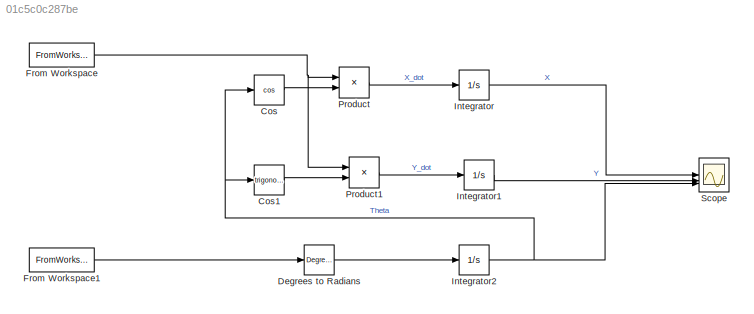
MODEL slx_01c5c0c287be
KIND model
CONFIG AbsTol = auto
CONFIG EnableMultiTasking = off
CONFIG FixedStep = auto
CONFIG MaxStep = auto
CONFIG MinStep = auto
CONFIG RelTol = 1e-3
CONFIG SampleTimeConstraint = Unconstrained
CONFIG SolverName = VariableStepAuto
CONFIG StartTime = 0.0
CONFIG StopTime = 10.0
BLOCK [Trigonometry] Cos
  Operator = cos
BLOCK [Trigonometry] Cos1
BLOCK [Reference] Degrees to Radians  REF=simulink_extras/Transformations/Degrees to
Radians
  SourceBlock = simulink_extras/Transformations/Degrees to\nRadians
  SourceType = DegreesToRadians
BLOCK [FromWorkspace] From Workspace
  VariableName = V
BLOCK [FromWorkspace] From Workspace1
  VariableName = Omega
BLOCK [Integrator] Integrator
BLOCK [Integrator] Integrator1
BLOCK [Integrator] Integrator2
BLOCK [Product] Product
BLOCK [Product] Product1
BLOCK [Scope] Scope
  Floating = off
  NumInputPorts = 3
  ScopeSpecificationString = Simulink.scopes.TimeScopeBlockCfg('CurrentConfiguration', extmgr.ConfigurationSet(extmgr.Configuration('Core','General UI',true),extmgr.Configuration('Core','Source UI',true),extmgr.Configuration('Sources','WiredSimulink',true),extmgr.Configuration('Visuals','Time Domain',true,'SerializedDisplays',{struct('MinYLimReal','-0.2497','MaxYLimReal','2.24731','YLabelReal','','MinYLimMag','0.00000','MaxYL...<+2963ch>
LINE Cos1:1 -> Product1:2
LINE Cos:1 -> Product:2
LINE Degrees to Radians:1 -> Integrator2:1
LINE From Workspace1:1 -> Degrees to Radians:1
NET From Workspace:1 -> Product1:1, Product:1
LINE Integrator1:1 -> Scope:2
NET Integrator2:1 -> Cos1:1, Cos:1, Scope:3
LINE Integrator:1 -> Scope:1
LINE Product1:1 -> Integrator1:1
LINE Product:1 -> Integrator:1
note: NET lines group one-source signal fan-out (src -> all destinations, sorted); 1:1 wires keep LINE
